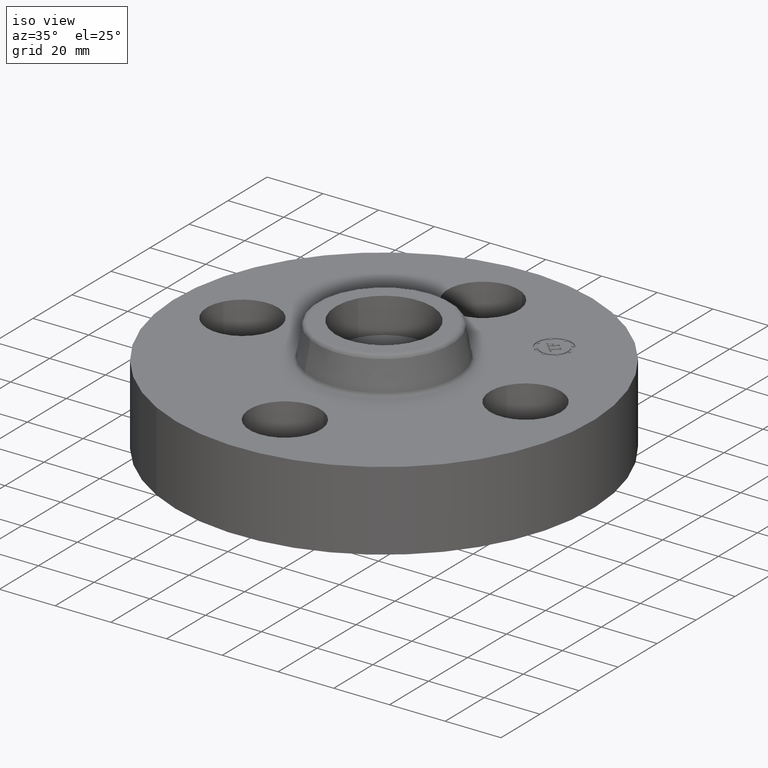
[diagram: clean part render]
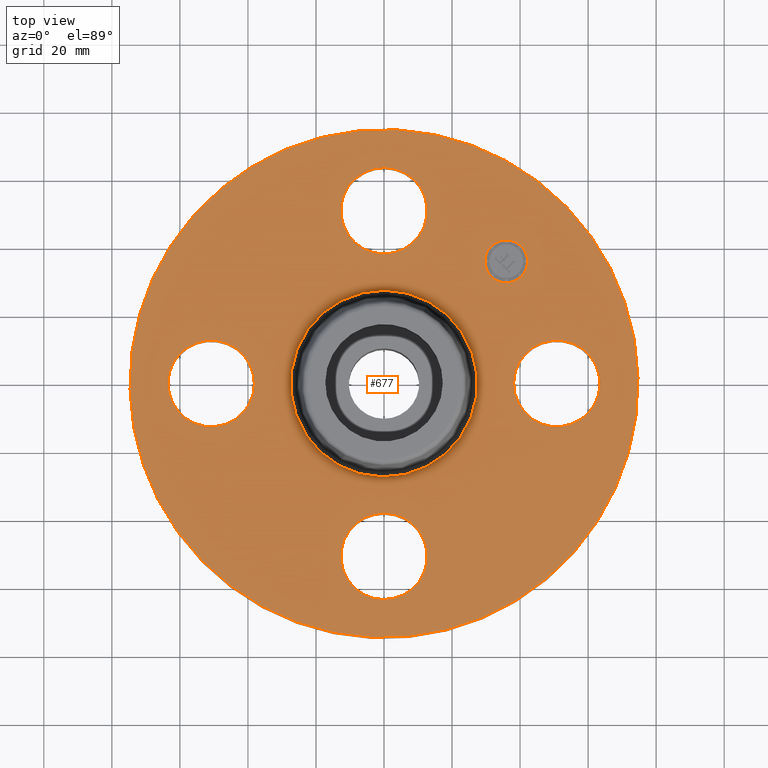
[diagram: tour spotlight — one face highlighted and labeled with its STEP entity id]
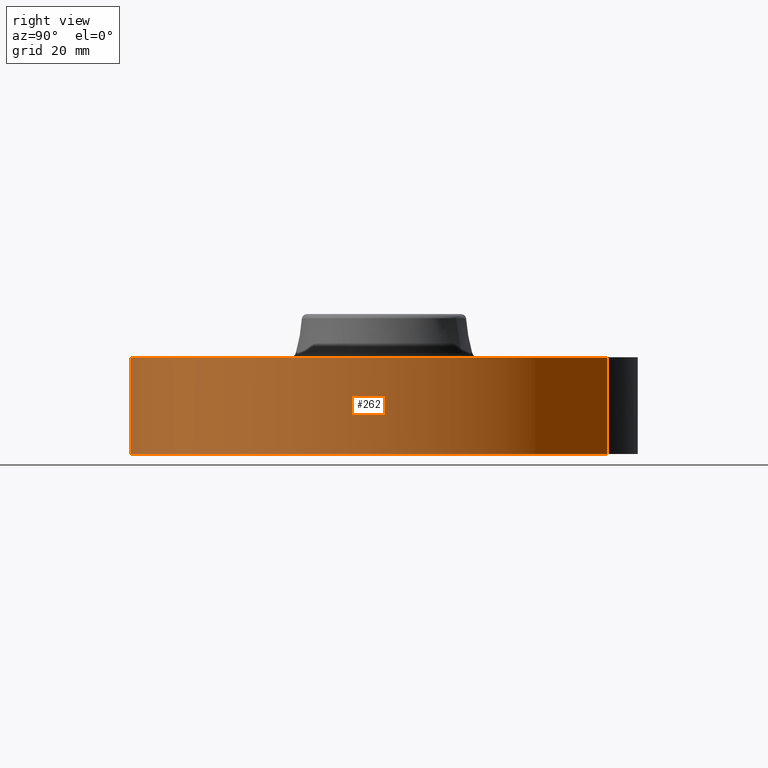
[diagram: tour spotlight — one face highlighted and labeled with its STEP entity id]
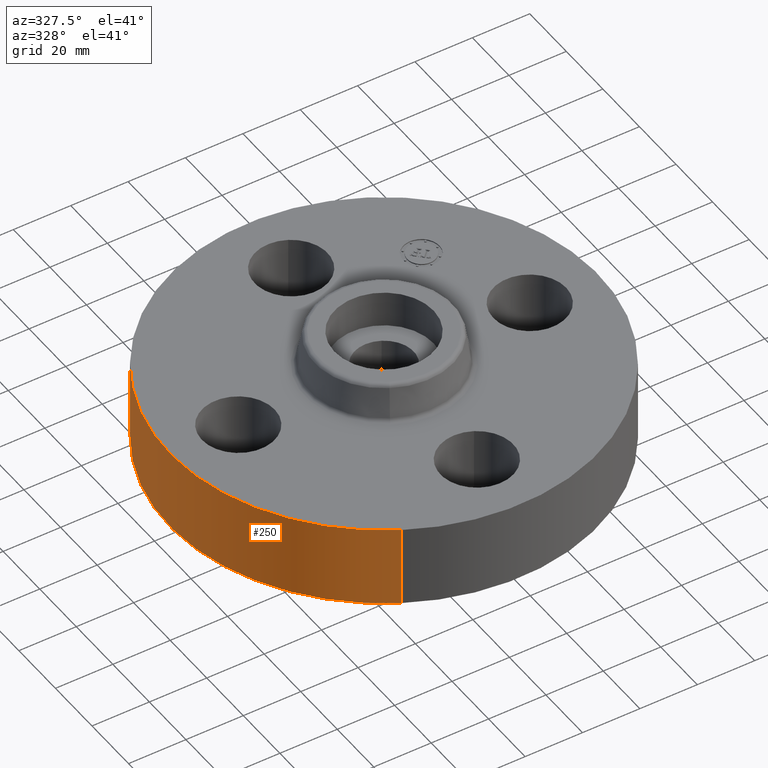
[diagram: tour spotlight — one face highlighted and labeled with its STEP entity id]
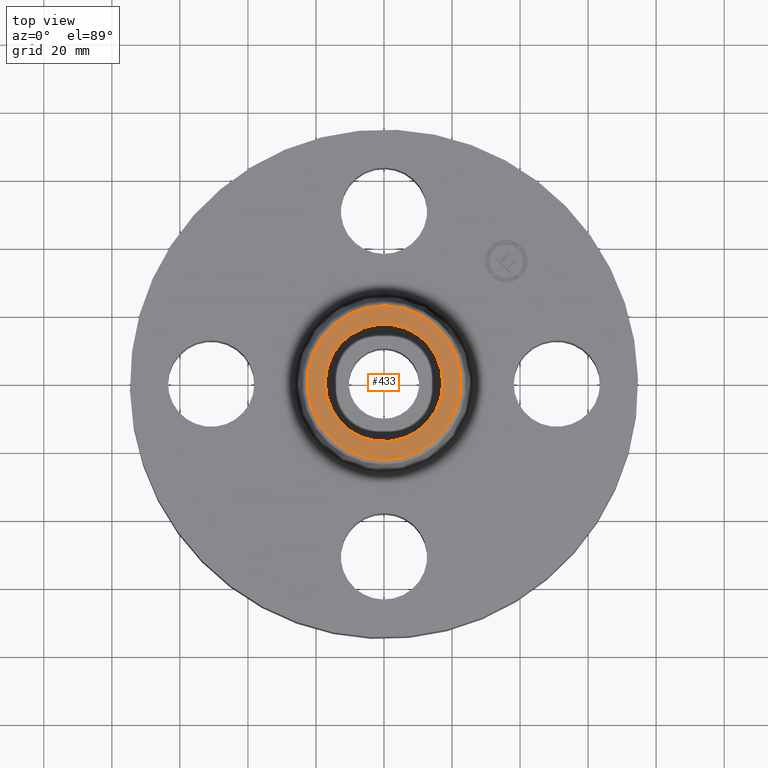
[diagram: tour spotlight — one face highlighted and labeled with its STEP entity id]
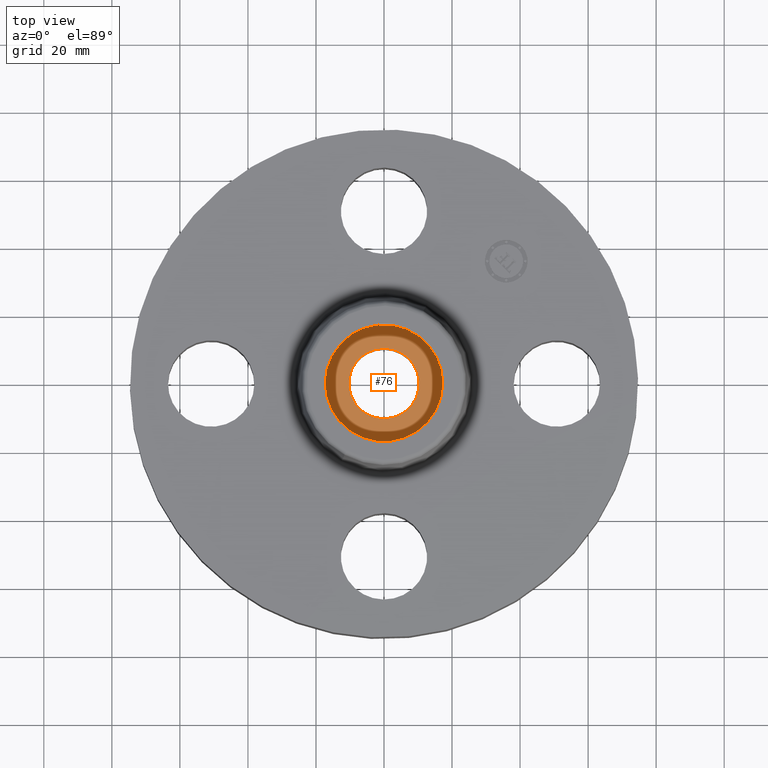
[diagram: tour spotlight — one face highlighted and labeled with its STEP entity id]
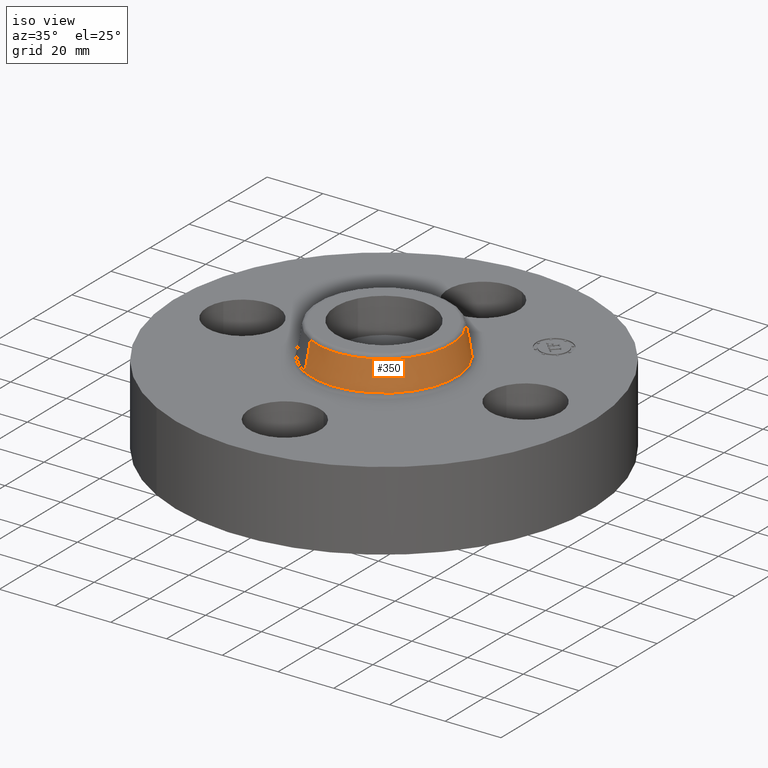
[diagram: tour spotlight — one face highlighted and labeled with its STEP entity id]
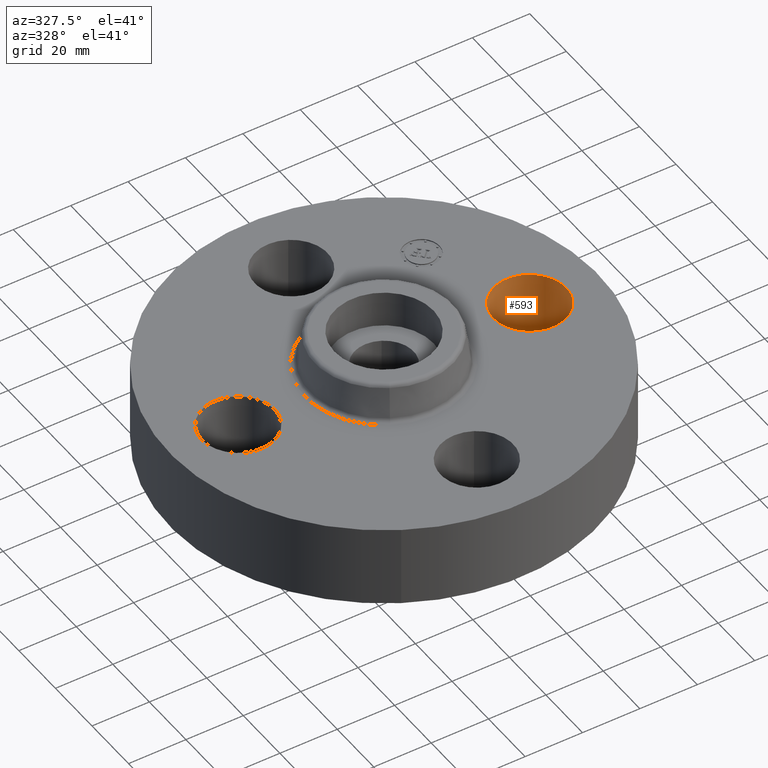
[diagram: tour spotlight — one face highlighted and labeled with its STEP entity id]
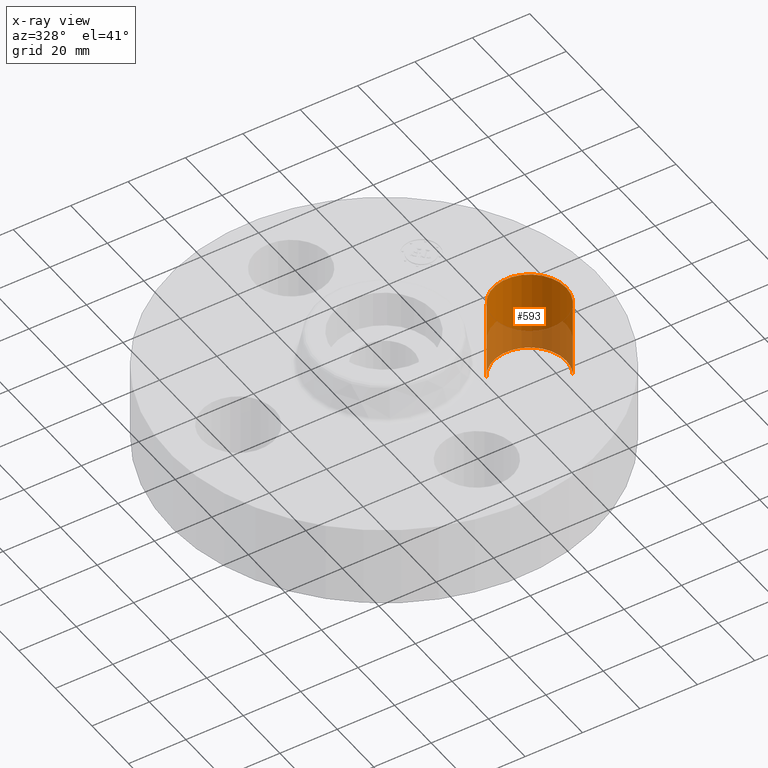
[diagram: x-ray of the same camera — body ghosted, this tour face saturated]
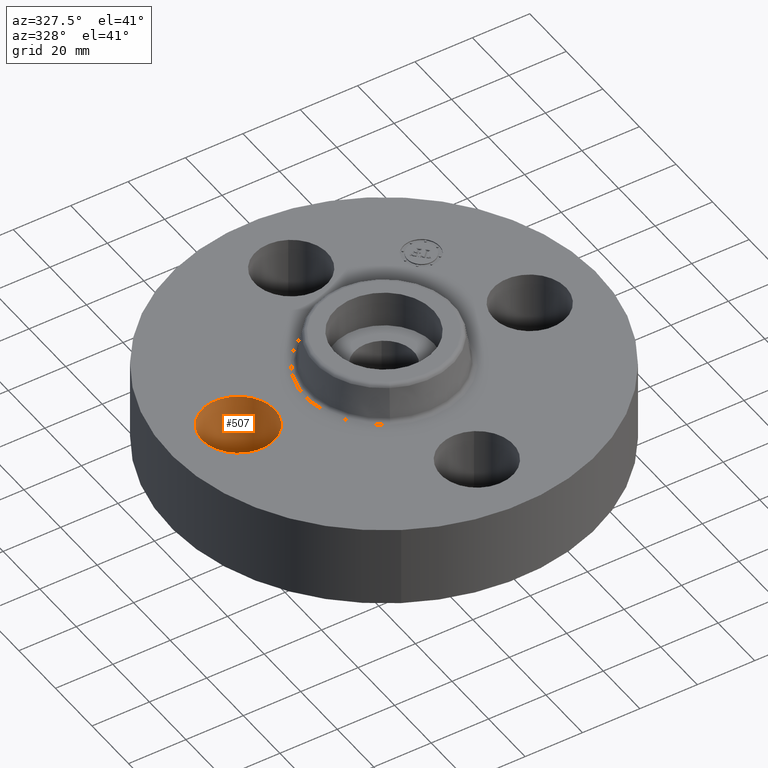
[diagram: tour spotlight — one face highlighted and labeled with its STEP entity id]
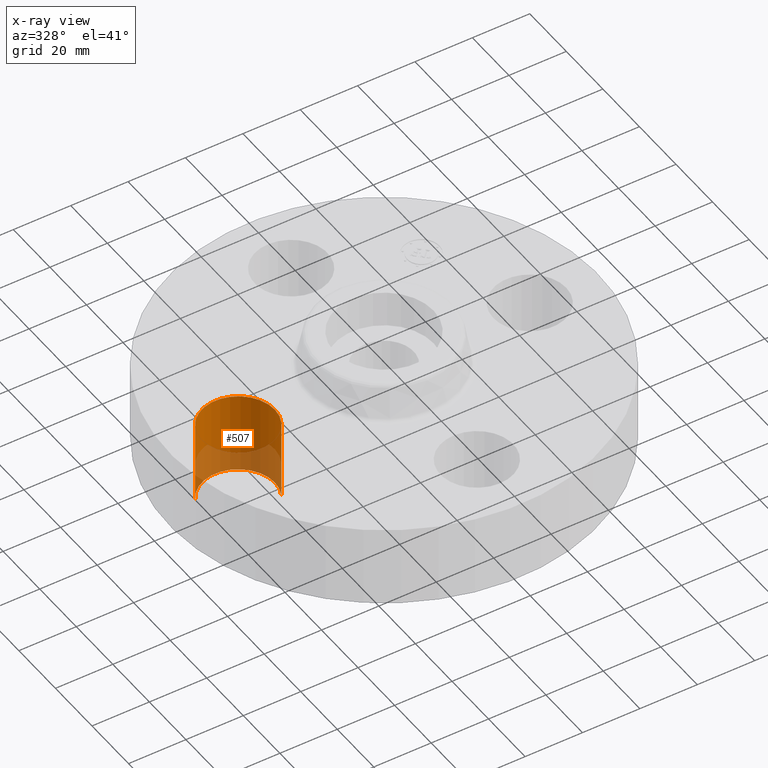
[diagram: x-ray of the same camera — body ghosted, this tour face saturated]
A machine part: a face-by-face anatomy tour. The part has 409 B-rep faces; the first image is the clean iso view, then the 8 largest visible faces are spotlighted one at a time (largest first), each with its STEP entity span.

Face 1 — top view, entity #677. In plain terms, the highlighted planar face has unit normal (0, 0, -1).
Definition (entity closure, byte-faithful):
#38=AXIS2_PLACEMENT_3D('Plane Axis2P3D',#35,#36,#37) ;
#234=AXIS2_PLACEMENT_3D('Circle Axis2P3D',#232,#233,$) ;
#253=AXIS2_PLACEMENT_3D('Circle Axis2P3D',#251,#252,$) ;
#270=AXIS2_PLACEMENT_3D('Circle Axis2P3D',#268,#269,$) ;
#305=AXIS2_PLACEMENT_3D('Circle Axis2P3D',#303,#304,$) ;
#455=AXIS2_PLACEMENT_3D('Circle Axis2P3D',#453,#454,$) ;
#467=AXIS2_PLACEMENT_3D('Circle Axis2P3D',#465,#466,$) ;
#498=AXIS2_PLACEMENT_3D('Circle Axis2P3D',#496,#497,$) ;
#510=AXIS2_PLACEMENT_3D('Circle Axis2P3D',#508,#509,$) ;
#541=AXIS2_PLACEMENT_3D('Circle Axis2P3D',#539,#540,$) ;
#553=AXIS2_PLACEMENT_3D('Circle Axis2P3D',#551,#552,$) ;
#584=AXIS2_PLACEMENT_3D('Circle Axis2P3D',#582,#583,$) ;
#596=AXIS2_PLACEMENT_3D('Circle Axis2P3D',#594,#595,$) ;
#661=AXIS2_PLACEMENT_3D('Circle Axis2P3D',#659,#660,$) ;
#670=AXIS2_PLACEMENT_3D('Circle Axis2P3D',#668,#669,$) ;
#35=CARTESIAN_POINT('Axis2P3D Location',(0.,2.94000000001,1.12)) ;
#229=CARTESIAN_POINT('Vertex',(-1.4095110835,-2.58009273197,1.12)) ;
#232=CARTESIAN_POINT('Axis2P3D Location',(0.,0.,1.12)) ;
#236=CARTESIAN_POINT('Vertex',(1.4095110835,2.58009273197,1.12)) ;
#251=CARTESIAN_POINT('Axis2P3D Location',(0.,0.,1.12)) ;
#268=CARTESIAN_POINT('Axis2P3D Location',(0.,0.,1.12)) ;
#272=CARTESIAN_POINT('Vertex',(0.517945452322,0.948092790991,1.12)) ;
#274=CARTESIAN_POINT('Vertex',(-0.517945452322,-0.948092790991,1.12)) ;
#303=CARTESIAN_POINT('Axis2P3D Location',(0.,0.,1.12)) ;
#443=CARTESIAN_POINT('Vertex',(0.239712769303,2.43879128095,1.12)) ;
#450=CARTESIAN_POINT('Vertex',(-0.239712769303,1.56120871906,1.12)) ;
#453=CARTESIAN_POINT('Axis2P3D Location',(-3.67394039746E-016,2.00000000001,1.12)) ;
#465=CARTESIAN_POINT('Axis2P3D Location',(-3.67394039746E-016,2.00000000001,1.12)) ;
#486=CARTESIAN_POINT('Vertex',(-2.43879128095,0.239712769303,1.12)) ;
#493=CARTESIAN_POINT('Vertex',(-1.56120871906,-0.239712769303,1.12)) ;
#496=CARTESIAN_POINT('Axis2P3D Location',(-2.00000000001,-2.4492935983E-016,1.12)) ;
#508=CARTESIAN_POINT('Axis2P3D Location',(-2.00000000001,-2.4492935983E-016,1.12)) ;
#529=CARTESIAN_POINT('Vertex',(-0.239712769303,-2.43879128095,1.12)) ;
#536=CARTESIAN_POINT('Vertex',(0.239712769303,-1.56120871906,1.12)) ;
#539=CARTESIAN_POINT('Axis2P3D Location',(1.22464679915E-016,-2.00000000001,1.12)) ;
#551=CARTESIAN_POINT('Axis2P3D Location',(1.22464679915E-016,-2.00000000001,1.12)) ;
#572=CARTESIAN_POINT('Vertex',(1.56120871906,0.239712769303,1.12)) ;
#579=CARTESIAN_POINT('Vertex',(2.43879128095,-0.239712769303,1.12)) ;
#582=CARTESIAN_POINT('Axis2P3D Location',(2.00000000001,0.,1.12)) ;
#594=CARTESIAN_POINT('Axis2P3D Location',(2.00000000001,0.,1.12)) ;
#659=CARTESIAN_POINT('Axis2P3D Location',(1.41421356238,1.41421356238,1.12)) ;
#663=CARTESIAN_POINT('Vertex',(1.23920463403,1.58922249072,1.12)) ;
#665=CARTESIAN_POINT('Vertex',(1.58922249072,1.23920463403,1.12)) ;
#668=CARTESIAN_POINT('Axis2P3D Location',(1.41421356238,1.41421356238,1.12)) ;
#36=DIRECTION('Axis2P3D Direction',(0.,0.,-0.0393700787402)) ;
#37=DIRECTION('Axis2P3D XDirection',(0.0393700787402,0.,0.)) ;
#233=DIRECTION('Axis2P3D Direction',(0.,0.,-0.0393700787402)) ;
#252=DIRECTION('Axis2P3D Direction',(0.,0.,-0.0393700787402)) ;
#269=DIRECTION('Axis2P3D Direction',(0.,0.,-0.0393700787402)) ;
#304=DIRECTION('Axis2P3D Direction',(0.,0.,-0.0393700787402)) ;
#454=DIRECTION('Axis2P3D Direction',(0.,0.,-0.0393700787402)) ;
#466=DIRECTION('Axis2P3D Direction',(0.,0.,-0.0393700787402)) ;
#497=DIRECTION('Axis2P3D Direction',(-0.,0.,-0.0393700787402)) ;
#509=DIRECTION('Axis2P3D Direction',(-0.,0.,-0.0393700787402)) ;
#540=DIRECTION('Axis2P3D Direction',(0.,-0.,-0.0393700787402)) ;
#552=DIRECTION('Axis2P3D Direction',(0.,-0.,-0.0393700787402)) ;
#583=DIRECTION('Axis2P3D Direction',(0.,-0.,-0.0393700787402)) ;
#595=DIRECTION('Axis2P3D Direction',(0.,-0.,-0.0393700787402)) ;
#660=DIRECTION('Axis2P3D Direction',(0.,0.,-0.0393700787402)) ;
#669=DIRECTION('Axis2P3D Direction',(0.,0.,-0.0393700787402)) ;
#636=ORIENTED_EDGE('',*,*,#255,.F.) ;
#637=ORIENTED_EDGE('',*,*,#238,.F.) ;
#640=ORIENTED_EDGE('',*,*,#586,.T.) ;
#641=ORIENTED_EDGE('',*,*,#598,.T.) ;
#644=ORIENTED_EDGE('',*,*,#307,.T.) ;
#645=ORIENTED_EDGE('',*,*,#276,.T.) ;
#648=ORIENTED_EDGE('',*,*,#543,.T.) ;
#649=ORIENTED_EDGE('',*,*,#555,.T.) ;
#652=ORIENTED_EDGE('',*,*,#500,.T.) ;
#653=ORIENTED_EDGE('',*,*,#512,.T.) ;
#656=ORIENTED_EDGE('',*,*,#457,.T.) ;
#657=ORIENTED_EDGE('',*,*,#469,.T.) ;
#674=ORIENTED_EDGE('',*,*,#667,.T.) ;
#675=ORIENTED_EDGE('',*,*,#672,.T.) ;
#642=FACE_BOUND('',#639,.T.) ;
#646=FACE_BOUND('',#643,.T.) ;
#650=FACE_BOUND('',#647,.T.) ;
#654=FACE_BOUND('',#651,.T.) ;
#658=FACE_BOUND('',#655,.T.) ;
#676=FACE_BOUND('',#673,.T.) ;
#677=ADVANCED_FACE('PartBody',(#638,#642,#646,#650,#654,#658,#676),#39,.F.) ;
#235=CIRCLE('generated circle',#234,2.94000000001) ;
#254=CIRCLE('generated circle',#253,2.94000000001) ;
#271=CIRCLE('generated circle',#270,1.08034597787) ;
#306=CIRCLE('generated circle',#305,1.08034597787) ;
#456=CIRCLE('generated circle',#455,0.500000000002) ;
#468=CIRCLE('generated circle',#467,0.500000000002) ;
#499=CIRCLE('generated circle',#498,0.500000000002) ;
#511=CIRCLE('generated circle',#510,0.500000000002) ;
#542=CIRCLE('generated circle',#541,0.500000000002) ;
#554=CIRCLE('generated circle',#553,0.500000000002) ;
#585=CIRCLE('generated circle',#584,0.500000000002) ;
#597=CIRCLE('generated circle',#596,0.500000000002) ;
#662=CIRCLE('generated circle',#661,0.247500000001) ;
#671=CIRCLE('generated circle',#670,0.247500000001) ;
#238=EDGE_CURVE('',#230,#237,#235,.T.) ;
#255=EDGE_CURVE('',#237,#230,#254,.T.) ;
#276=EDGE_CURVE('',#273,#275,#271,.T.) ;
#307=EDGE_CURVE('',#275,#273,#306,.T.) ;
#457=EDGE_CURVE('',#444,#451,#456,.T.) ;
#469=EDGE_CURVE('',#451,#444,#468,.T.) ;
#500=EDGE_CURVE('',#487,#494,#499,.T.) ;
#512=EDGE_CURVE('',#494,#487,#511,.T.) ;
#543=EDGE_CURVE('',#530,#537,#542,.T.) ;
#555=EDGE_CURVE('',#537,#530,#554,.T.) ;
#586=EDGE_CURVE('',#573,#580,#585,.T.) ;
#598=EDGE_CURVE('',#580,#573,#597,.T.) ;
#667=EDGE_CURVE('',#664,#666,#662,.T.) ;
#672=EDGE_CURVE('',#666,#664,#671,.T.) ;
#635=EDGE_LOOP('',(#636,#637)) ;
#639=EDGE_LOOP('',(#640,#641)) ;
#643=EDGE_LOOP('',(#644,#645)) ;
#647=EDGE_LOOP('',(#648,#649)) ;
#651=EDGE_LOOP('',(#652,#653)) ;
#655=EDGE_LOOP('',(#656,#657)) ;
#673=EDGE_LOOP('',(#674,#675)) ;
#638=FACE_OUTER_BOUND('',#635,.T.) ;
#39=PLANE('',#38) ;
#230=VERTEX_POINT('',#229) ;
#237=VERTEX_POINT('',#236) ;
#273=VERTEX_POINT('',#272) ;
#275=VERTEX_POINT('',#274) ;
#444=VERTEX_POINT('',#443) ;
#451=VERTEX_POINT('',#450) ;
#487=VERTEX_POINT('',#486) ;
#494=VERTEX_POINT('',#493) ;
#530=VERTEX_POINT('',#529) ;
#537=VERTEX_POINT('',#536) ;
#573=VERTEX_POINT('',#572) ;
#580=VERTEX_POINT('',#579) ;
#664=VERTEX_POINT('',#663) ;
#666=VERTEX_POINT('',#665) ;

Face 2 — right view, entity #262. In plain terms, the highlighted cylindrical surface (partial cylindrical patch) has radius 74.676 mm, axis along (0, 0, -1).
Definition (entity closure, byte-faithful):
#136=AXIS2_PLACEMENT_3D('Circle Axis2P3D',#134,#135,$) ;
#223=AXIS2_PLACEMENT_3D('Cylinder Axis2P3D',#220,#221,#222) ;
#253=AXIS2_PLACEMENT_3D('Circle Axis2P3D',#251,#252,$) ;
#129=CARTESIAN_POINT('Vertex',(-1.4095110835,-2.58009273197,2.79741234551E-016)) ;
#131=CARTESIAN_POINT('Vertex',(1.4095110835,2.58009273197,2.79741234551E-016)) ;
#134=CARTESIAN_POINT('Axis2P3D Location',(0.,0.,0.)) ;
#220=CARTESIAN_POINT('Axis2P3D Location',(0.,0.,0.810000000003)) ;
#225=CARTESIAN_POINT('Line Origine',(-1.4095110835,-2.58009273197,0.560000000002)) ;
#229=CARTESIAN_POINT('Vertex',(-1.4095110835,-2.58009273197,1.12)) ;
#236=CARTESIAN_POINT('Vertex',(1.4095110835,2.58009273197,1.12)) ;
#239=CARTESIAN_POINT('Line Origine',(1.4095110835,2.58009273197,0.560000000002)) ;
#251=CARTESIAN_POINT('Axis2P3D Location',(0.,0.,1.12)) ;
#135=DIRECTION('Axis2P3D Direction',(0.,0.,-0.0393700787402)) ;
#221=DIRECTION('Axis2P3D Direction',(0.,0.,-0.0393700787402)) ;
#222=DIRECTION('Axis2P3D XDirection',(0.0188750212049,0.0345504945626,0.)) ;
#226=DIRECTION('Vector Direction',(0.,0.,-0.0393700787402)) ;
#240=DIRECTION('Vector Direction',(0.,0.,-0.0393700787402)) ;
#252=DIRECTION('Axis2P3D Direction',(0.,0.,-0.0393700787402)) ;
#227=VECTOR('Line Direction',#226,0.0393700787402) ;
#241=VECTOR('Line Direction',#240,0.0393700787402) ;
#257=ORIENTED_EDGE('',*,*,#138,.F.) ;
#258=ORIENTED_EDGE('',*,*,#243,.T.) ;
#259=ORIENTED_EDGE('',*,*,#255,.T.) ;
#260=ORIENTED_EDGE('',*,*,#231,.F.) ;
#262=ADVANCED_FACE('PartBody',(#261),#224,.T.) ;
#137=CIRCLE('generated circle',#136,2.94000000001) ;
#254=CIRCLE('generated circle',#253,2.94000000001) ;
#224=CYLINDRICAL_SURFACE('generated cylinder',#223,2.94000000001) ;
#138=EDGE_CURVE('',#132,#130,#137,.T.) ;
#231=EDGE_CURVE('',#130,#230,#228,.F.) ;
#243=EDGE_CURVE('',#132,#237,#242,.F.) ;
#255=EDGE_CURVE('',#237,#230,#254,.T.) ;
#256=EDGE_LOOP('',(#257,#258,#259,#260)) ;
#261=FACE_OUTER_BOUND('',#256,.T.) ;
#228=LINE('Line',#225,#227) ;
#242=LINE('Line',#239,#241) ;
#130=VERTEX_POINT('',#129) ;
#132=VERTEX_POINT('',#131) ;
#230=VERTEX_POINT('',#229) ;
#237=VERTEX_POINT('',#236) ;

Face 3 — auxiliary view, entity #250. In plain terms, the highlighted cylindrical surface (partial cylindrical patch) has radius 74.676 mm, axis along (0, 0, -1).
Definition (entity closure, byte-faithful):
#127=AXIS2_PLACEMENT_3D('Circle Axis2P3D',#125,#126,$) ;
#223=AXIS2_PLACEMENT_3D('Cylinder Axis2P3D',#220,#221,#222) ;
#234=AXIS2_PLACEMENT_3D('Circle Axis2P3D',#232,#233,$) ;
#125=CARTESIAN_POINT('Axis2P3D Location',(0.,0.,0.)) ;
#129=CARTESIAN_POINT('Vertex',(-1.4095110835,-2.58009273197,2.79741234551E-016)) ;
#131=CARTESIAN_POINT('Vertex',(1.4095110835,2.58009273197,2.79741234551E-016)) ;
#220=CARTESIAN_POINT('Axis2P3D Location',(0.,0.,0.810000000003)) ;
#225=CARTESIAN_POINT('Line Origine',(-1.4095110835,-2.58009273197,0.560000000002)) ;
#229=CARTESIAN_POINT('Vertex',(-1.4095110835,-2.58009273197,1.12)) ;
#232=CARTESIAN_POINT('Axis2P3D Location',(0.,0.,1.12)) ;
#236=CARTESIAN_POINT('Vertex',(1.4095110835,2.58009273197,1.12)) ;
#239=CARTESIAN_POINT('Line Origine',(1.4095110835,2.58009273197,0.560000000002)) ;
#126=DIRECTION('Axis2P3D Direction',(0.,0.,-0.0393700787402)) ;
#221=DIRECTION('Axis2P3D Direction',(0.,0.,-0.0393700787402)) ;
#222=DIRECTION('Axis2P3D XDirection',(0.0188750212049,0.0345504945626,0.)) ;
#226=DIRECTION('Vector Direction',(0.,0.,-0.0393700787402)) ;
#233=DIRECTION('Axis2P3D Direction',(0.,0.,-0.0393700787402)) ;
#240=DIRECTION('Vector Direction',(0.,0.,-0.0393700787402)) ;
#227=VECTOR('Line Direction',#226,0.0393700787402) ;
#241=VECTOR('Line Direction',#240,0.0393700787402) ;
#245=ORIENTED_EDGE('',*,*,#133,.F.) ;
#246=ORIENTED_EDGE('',*,*,#231,.T.) ;
#247=ORIENTED_EDGE('',*,*,#238,.T.) ;
#248=ORIENTED_EDGE('',*,*,#243,.F.) ;
#250=ADVANCED_FACE('PartBody',(#249),#224,.T.) ;
#128=CIRCLE('generated circle',#127,2.94000000001) ;
#235=CIRCLE('generated circle',#234,2.94000000001) ;
#224=CYLINDRICAL_SURFACE('generated cylinder',#223,2.94000000001) ;
#133=EDGE_CURVE('',#130,#132,#128,.T.) ;
#231=EDGE_CURVE('',#130,#230,#228,.F.) ;
#238=EDGE_CURVE('',#230,#237,#235,.T.) ;
#243=EDGE_CURVE('',#132,#237,#242,.F.) ;
#244=EDGE_LOOP('',(#245,#246,#247,#248)) ;
#249=FACE_OUTER_BOUND('',#244,.T.) ;
#228=LINE('Line',#225,#227) ;
#242=LINE('Line',#239,#241) ;
#130=VERTEX_POINT('',#129) ;
#132=VERTEX_POINT('',#131) ;
#230=VERTEX_POINT('',#229) ;
#237=VERTEX_POINT('',#236) ;

Face 4 — top view, entity #433. In plain terms, the highlighted planar face has unit normal (0, 0, -1).
Definition (entity closure, byte-faithful):
#377=AXIS2_PLACEMENT_3D('Circle Axis2P3D',#375,#376,$) ;
#396=AXIS2_PLACEMENT_3D('Circle Axis2P3D',#394,#395,$) ;
#409=AXIS2_PLACEMENT_3D('Plane Axis2P3D',#406,#407,#408) ;
#417=AXIS2_PLACEMENT_3D('Circle Axis2P3D',#415,#416,$) ;
#426=AXIS2_PLACEMENT_3D('Circle Axis2P3D',#424,#425,$) ;
#372=CARTESIAN_POINT('Vertex',(0.427403328359,0.782356544779,1.62000000001)) ;
#375=CARTESIAN_POINT('Axis2P3D Location',(0.,0.,1.62000000001)) ;
#379=CARTESIAN_POINT('Vertex',(-0.427403328359,-0.782356544779,1.62000000001)) ;
#394=CARTESIAN_POINT('Axis2P3D Location',(0.,0.,1.62000000001)) ;
#406=CARTESIAN_POINT('Axis2P3D Location',(0.,0.891490531779,1.62000000001)) ;
#415=CARTESIAN_POINT('Axis2P3D Location',(0.,-2.79741234551E-016,1.62000000001)) ;
#419=CARTESIAN_POINT('Vertex',(-0.596756142088,0.326009366252,1.62000000001)) ;
#421=CARTESIAN_POINT('Vertex',(0.596756142088,-0.326009366252,1.62000000001)) ;
#424=CARTESIAN_POINT('Axis2P3D Location',(1.04902962957E-016,-1.39870617276E-016,1.62000000001)) ;
#376=DIRECTION('Axis2P3D Direction',(0.,0.,-0.0393700787402)) ;
#395=DIRECTION('Axis2P3D Direction',(0.,0.,-0.0393700787402)) ;
#407=DIRECTION('Axis2P3D Direction',(0.,0.,-0.0393700787402)) ;
#408=DIRECTION('Axis2P3D XDirection',(0.0393700787402,0.,0.)) ;
#416=DIRECTION('Axis2P3D Direction',(0.,0.,-0.0393700787402)) ;
#425=DIRECTION('Axis2P3D Direction',(0.,0.,-0.0393700787402)) ;
#412=ORIENTED_EDGE('',*,*,#381,.F.) ;
#413=ORIENTED_EDGE('',*,*,#398,.F.) ;
#430=ORIENTED_EDGE('',*,*,#423,.T.) ;
#431=ORIENTED_EDGE('',*,*,#428,.T.) ;
#432=FACE_BOUND('',#429,.T.) ;
#433=ADVANCED_FACE('PartBody',(#414,#432),#410,.F.) ;
#378=CIRCLE('generated circle',#377,0.891490531779) ;
#397=CIRCLE('generated circle',#396,0.891490531779) ;
#418=CIRCLE('generated circle',#417,0.680000000003) ;
#427=CIRCLE('generated circle',#426,0.680000000003) ;
#381=EDGE_CURVE('',#373,#380,#378,.T.) ;
#398=EDGE_CURVE('',#380,#373,#397,.T.) ;
#423=EDGE_CURVE('',#420,#422,#418,.T.) ;
#428=EDGE_CURVE('',#422,#420,#427,.T.) ;
#411=EDGE_LOOP('',(#412,#413)) ;
#429=EDGE_LOOP('',(#430,#431)) ;
#414=FACE_OUTER_BOUND('',#411,.T.) ;
#410=PLANE('',#409) ;
#373=VERTEX_POINT('',#372) ;
#380=VERTEX_POINT('',#379) ;
#420=VERTEX_POINT('',#419) ;
#422=VERTEX_POINT('',#421) ;

Face 5 — top view, entity #76. In plain terms, the highlighted planar face has unit normal (0, 0, -1).
Definition (entity closure, byte-faithful):
#38=AXIS2_PLACEMENT_3D('Plane Axis2P3D',#35,#36,#37) ;
#42=AXIS2_PLACEMENT_3D('Circle Axis2P3D',#40,#41,$) ;
#51=AXIS2_PLACEMENT_3D('Circle Axis2P3D',#49,#50,$) ;
#60=AXIS2_PLACEMENT_3D('Circle Axis2P3D',#58,#59,$) ;
#69=AXIS2_PLACEMENT_3D('Circle Axis2P3D',#67,#68,$) ;
#35=CARTESIAN_POINT('Axis2P3D Location',(0.,2.94000000001,1.12)) ;
#40=CARTESIAN_POINT('Axis2P3D Location',(0.,0.,1.12)) ;
#44=CARTESIAN_POINT('Vertex',(-0.596756142088,0.326009366252,1.12)) ;
#46=CARTESIAN_POINT('Vertex',(0.596756142088,-0.326009366252,1.12)) ;
#49=CARTESIAN_POINT('Axis2P3D Location',(0.,0.,1.12)) ;
#58=CARTESIAN_POINT('Axis2P3D Location',(2.44773580232E-016,0.,1.12)) ;
#62=CARTESIAN_POINT('Vertex',(0.195365906982,0.357614893972,1.12)) ;
#64=CARTESIAN_POINT('Vertex',(-0.195365906982,-0.357614893972,1.12)) ;
#67=CARTESIAN_POINT('Axis2P3D Location',(6.99353086378E-017,5.59482469102E-016,1.12)) ;
#36=DIRECTION('Axis2P3D Direction',(0.,0.,-0.0393700787402)) ;
#37=DIRECTION('Axis2P3D XDirection',(0.0393700787402,0.,0.)) ;
#41=DIRECTION('Axis2P3D Direction',(0.,0.,-0.0393700787402)) ;
#50=DIRECTION('Axis2P3D Direction',(0.,0.,-0.0393700787402)) ;
#59=DIRECTION('Axis2P3D Direction',(0.,0.,-0.0393700787402)) ;
#68=DIRECTION('Axis2P3D Direction',(0.,0.,-0.0393700787402)) ;
#55=ORIENTED_EDGE('',*,*,#48,.F.) ;
#56=ORIENTED_EDGE('',*,*,#53,.F.) ;
#73=ORIENTED_EDGE('',*,*,#66,.T.) ;
#74=ORIENTED_EDGE('',*,*,#71,.T.) ;
#75=FACE_BOUND('',#72,.T.) ;
#76=ADVANCED_FACE('PartBody',(#57,#75),#39,.F.) ;
#43=CIRCLE('generated circle',#42,0.680000000003) ;
#52=CIRCLE('generated circle',#51,0.680000000003) ;
#61=CIRCLE('generated circle',#60,0.407500000002) ;
#70=CIRCLE('generated circle',#69,0.407500000002) ;
#48=EDGE_CURVE('',#45,#47,#43,.T.) ;
#53=EDGE_CURVE('',#47,#45,#52,.T.) ;
#66=EDGE_CURVE('',#63,#65,#61,.T.) ;
#71=EDGE_CURVE('',#65,#63,#70,.T.) ;
#54=EDGE_LOOP('',(#55,#56)) ;
#72=EDGE_LOOP('',(#73,#74)) ;
#57=FACE_OUTER_BOUND('',#54,.T.) ;
#39=PLANE('',#38) ;
#45=VERTEX_POINT('',#44) ;
#47=VERTEX_POINT('',#46) ;
#63=VERTEX_POINT('',#62) ;
#65=VERTEX_POINT('',#64) ;

Face 6 — iso view, entity #350. In plain terms, the highlighted conical surface has half-angle 10 deg.
Definition (entity closure, byte-faithful):
#286=AXIS2_PLACEMENT_3D('Circle Axis2P3D',#284,#285,$) ;
#323=AXIS2_PLACEMENT_3D('Cone Axis2P3D',#320,#321,#322) ;
#334=AXIS2_PLACEMENT_3D('Circle Axis2P3D',#332,#333,$) ;
#281=CARTESIAN_POINT('Vertex',(0.489616933077,0.89623778434,1.16958110934)) ;
#284=CARTESIAN_POINT('Axis2P3D Location',(0.,0.,1.16958110934)) ;
#288=CARTESIAN_POINT('Vertex',(-0.489616933077,-0.89623778434,1.16958110934)) ;
#320=CARTESIAN_POINT('Axis2P3D Location',(0.,0.,1.57041889067)) ;
#325=CARTESIAN_POINT('Line Origine',(0.47267439034,0.865224667885,1.37000000001)) ;
#329=CARTESIAN_POINT('Vertex',(0.455731847603,0.834211551431,1.57041889067)) ;
#332=CARTESIAN_POINT('Axis2P3D Location',(0.,0.,1.57041889067)) ;
#336=CARTESIAN_POINT('Vertex',(-0.455731847603,-0.834211551431,1.57041889067)) ;
#339=CARTESIAN_POINT('Line Origine',(-0.47267439034,-0.865224667885,1.37000000001)) ;
#285=DIRECTION('Axis2P3D Direction',(0.,0.,-0.0393700787402)) ;
#321=DIRECTION('Axis2P3D Direction',(0.,0.,-0.0393700787402)) ;
#322=DIRECTION('Axis2P3D XDirection',(-0.0188750212049,-0.0345504945626,0.)) ;
#326=DIRECTION('Vector Direction',(0.00327761303565,0.00599963041829,-0.03877195878)) ;
#333=DIRECTION('Axis2P3D Direction',(0.,0.,-0.0393700787402)) ;
#340=DIRECTION('Vector Direction',(-0.00327761303565,-0.00599963041829,-0.03877195878)) ;
#327=VECTOR('Line Direction',#326,0.0393700787402) ;
#341=VECTOR('Line Direction',#340,0.0393700787402) ;
#345=ORIENTED_EDGE('',*,*,#290,.F.) ;
#346=ORIENTED_EDGE('',*,*,#331,.T.) ;
#347=ORIENTED_EDGE('',*,*,#338,.T.) ;
#348=ORIENTED_EDGE('',*,*,#343,.F.) ;
#350=ADVANCED_FACE('PartBody',(#349),#324,.T.) ;
#287=CIRCLE('generated circle',#286,1.02125751269) ;
#335=CIRCLE('generated circle',#334,0.95057899696) ;
#324=CONICAL_SURFACE('Cone',#323,0.95057899696,0.174532925199) ;
#290=EDGE_CURVE('',#282,#289,#287,.T.) ;
#331=EDGE_CURVE('',#282,#330,#328,.F.) ;
#338=EDGE_CURVE('',#330,#337,#335,.T.) ;
#343=EDGE_CURVE('',#289,#337,#342,.F.) ;
#344=EDGE_LOOP('',(#345,#346,#347,#348)) ;
#349=FACE_OUTER_BOUND('',#344,.T.) ;
#328=LINE('Line',#325,#327) ;
#342=LINE('Line',#339,#341) ;
#282=VERTEX_POINT('',#281) ;
#289=VERTEX_POINT('',#288) ;
#330=VERTEX_POINT('',#329) ;
#337=VERTEX_POINT('',#336) ;

Face 7 — auxiliary view, entity #593. An x-ray twin of the same camera follows (body ghosted, this face saturated) — the face is partly hidden behind the body. In plain terms, the highlighted cylindrical surface (partial cylindrical patch) has radius 12.7 mm, axis along (0, -0, -1).
Definition (entity closure, byte-faithful):
#154=AXIS2_PLACEMENT_3D('Circle Axis2P3D',#152,#153,$) ;
#566=AXIS2_PLACEMENT_3D('Cylinder Axis2P3D',#563,#564,#565) ;
#584=AXIS2_PLACEMENT_3D('Circle Axis2P3D',#582,#583,$) ;
#147=CARTESIAN_POINT('Vertex',(2.43879128095,-0.239712769303,0.)) ;
#149=CARTESIAN_POINT('Vertex',(1.56120871906,0.239712769303,0.)) ;
#152=CARTESIAN_POINT('Axis2P3D Location',(2.00000000001,-1.39870617276E-016,0.)) ;
#563=CARTESIAN_POINT('Axis2P3D Location',(2.00000000001,0.,1.11606299213)) ;
#568=CARTESIAN_POINT('Line Origine',(1.56120871906,0.239712769303,0.560000000002)) ;
#572=CARTESIAN_POINT('Vertex',(1.56120871906,0.239712769303,1.12)) ;
#575=CARTESIAN_POINT('Line Origine',(2.43879128095,-0.239712769303,0.560000000002)) ;
#579=CARTESIAN_POINT('Vertex',(2.43879128095,-0.239712769303,1.12)) ;
#582=CARTESIAN_POINT('Axis2P3D Location',(2.00000000001,0.,1.12)) ;
#153=DIRECTION('Axis2P3D Direction',(0.,0.,-0.0393700787402)) ;
#564=DIRECTION('Axis2P3D Direction',(0.,-0.,-0.0393700787402)) ;
#565=DIRECTION('Axis2P3D XDirection',(0.0345504945626,-0.0188750212049,0.)) ;
#569=DIRECTION('Vector Direction',(0.,0.,-0.0393700787402)) ;
#576=DIRECTION('Vector Direction',(0.,0.,-0.0393700787402)) ;
#583=DIRECTION('Axis2P3D Direction',(0.,-0.,-0.0393700787402)) ;
#570=VECTOR('Line Direction',#569,0.0393700787402) ;
#577=VECTOR('Line Direction',#576,0.0393700787402) ;
#588=ORIENTED_EDGE('',*,*,#574,.F.) ;
#589=ORIENTED_EDGE('',*,*,#156,.T.) ;
#590=ORIENTED_EDGE('',*,*,#581,.T.) ;
#591=ORIENTED_EDGE('',*,*,#586,.F.) ;
#593=ADVANCED_FACE('PartBody',(#592),#567,.F.) ;
#155=CIRCLE('generated circle',#154,0.500000000002) ;
#585=CIRCLE('generated circle',#584,0.500000000002) ;
#567=CYLINDRICAL_SURFACE('generated cylinder',#566,0.500000000002) ;
#156=EDGE_CURVE('',#150,#148,#155,.T.) ;
#574=EDGE_CURVE('',#150,#573,#571,.F.) ;
#581=EDGE_CURVE('',#148,#580,#578,.F.) ;
#586=EDGE_CURVE('',#573,#580,#585,.T.) ;
#587=EDGE_LOOP('',(#588,#589,#590,#591)) ;
#592=FACE_OUTER_BOUND('',#587,.T.) ;
#571=LINE('Line',#568,#570) ;
#578=LINE('Line',#575,#577) ;
#148=VERTEX_POINT('',#147) ;
#150=VERTEX_POINT('',#149) ;
#573=VERTEX_POINT('',#572) ;
#580=VERTEX_POINT('',#579) ;

Face 8 — auxiliary view, entity #507. An x-ray twin of the same camera follows (body ghosted, this face saturated) — the face is partly hidden behind the body. In plain terms, the highlighted cylindrical surface (partial cylindrical patch) has radius 12.7 mm, axis along (-0, 0, -1).
Definition (entity closure, byte-faithful):
#194=AXIS2_PLACEMENT_3D('Circle Axis2P3D',#192,#193,$) ;
#480=AXIS2_PLACEMENT_3D('Cylinder Axis2P3D',#477,#478,#479) ;
#498=AXIS2_PLACEMENT_3D('Circle Axis2P3D',#496,#497,$) ;
#187=CARTESIAN_POINT('Vertex',(-1.56120871906,-0.239712769303,0.)) ;
#189=CARTESIAN_POINT('Vertex',(-2.43879128095,0.239712769303,0.)) ;
#192=CARTESIAN_POINT('Axis2P3D Location',(-2.00000000001,-2.79741234551E-016,0.)) ;
#477=CARTESIAN_POINT('Axis2P3D Location',(-2.00000000001,-2.4492935983E-016,1.11606299213)) ;
#482=CARTESIAN_POINT('Line Origine',(-2.43879128095,0.239712769303,0.560000000002)) ;
#486=CARTESIAN_POINT('Vertex',(-2.43879128095,0.239712769303,1.12)) ;
#489=CARTESIAN_POINT('Line Origine',(-1.56120871906,-0.239712769303,0.560000000002)) ;
#493=CARTESIAN_POINT('Vertex',(-1.56120871906,-0.239712769303,1.12)) ;
#496=CARTESIAN_POINT('Axis2P3D Location',(-2.00000000001,-2.4492935983E-016,1.12)) ;
#193=DIRECTION('Axis2P3D Direction',(0.,0.,-0.0393700787402)) ;
#478=DIRECTION('Axis2P3D Direction',(-0.,0.,-0.0393700787402)) ;
#479=DIRECTION('Axis2P3D XDirection',(0.0345504945626,-0.0188750212049,-0.)) ;
#483=DIRECTION('Vector Direction',(0.,0.,-0.0393700787402)) ;
#490=DIRECTION('Vector Direction',(0.,0.,-0.0393700787402)) ;
#497=DIRECTION('Axis2P3D Direction',(-0.,0.,-0.0393700787402)) ;
#484=VECTOR('Line Direction',#483,0.0393700787402) ;
#491=VECTOR('Line Direction',#490,0.0393700787402) ;
#502=ORIENTED_EDGE('',*,*,#488,.F.) ;
#503=ORIENTED_EDGE('',*,*,#196,.T.) ;
#504=ORIENTED_EDGE('',*,*,#495,.T.) ;
#505=ORIENTED_EDGE('',*,*,#500,.F.) ;
#507=ADVANCED_FACE('PartBody',(#506),#481,.F.) ;
#195=CIRCLE('generated circle',#194,0.500000000002) ;
#499=CIRCLE('generated circle',#498,0.500000000002) ;
#481=CYLINDRICAL_SURFACE('generated cylinder',#480,0.500000000002) ;
#196=EDGE_CURVE('',#190,#188,#195,.T.) ;
#488=EDGE_CURVE('',#190,#487,#485,.F.) ;
#495=EDGE_CURVE('',#188,#494,#492,.F.) ;
#500=EDGE_CURVE('',#487,#494,#499,.T.) ;
#501=EDGE_LOOP('',(#502,#503,#504,#505)) ;
#506=FACE_OUTER_BOUND('',#501,.T.) ;
#485=LINE('Line',#482,#484) ;
#492=LINE('Line',#489,#491) ;
#188=VERTEX_POINT('',#187) ;
#190=VERTEX_POINT('',#189) ;
#487=VERTEX_POINT('',#486) ;
#494=VERTEX_POINT('',#493) ;